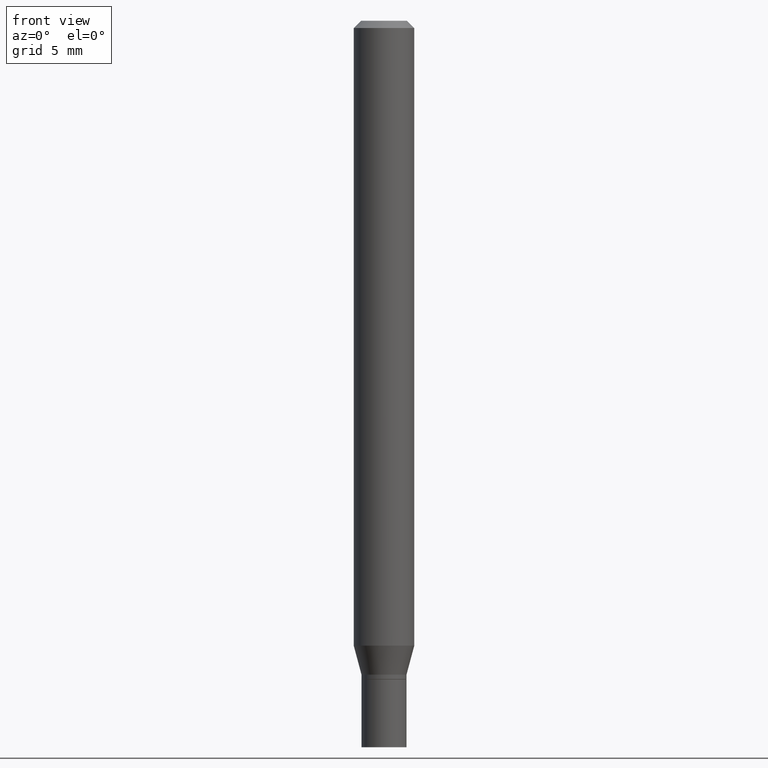
[diagram: clean part render]
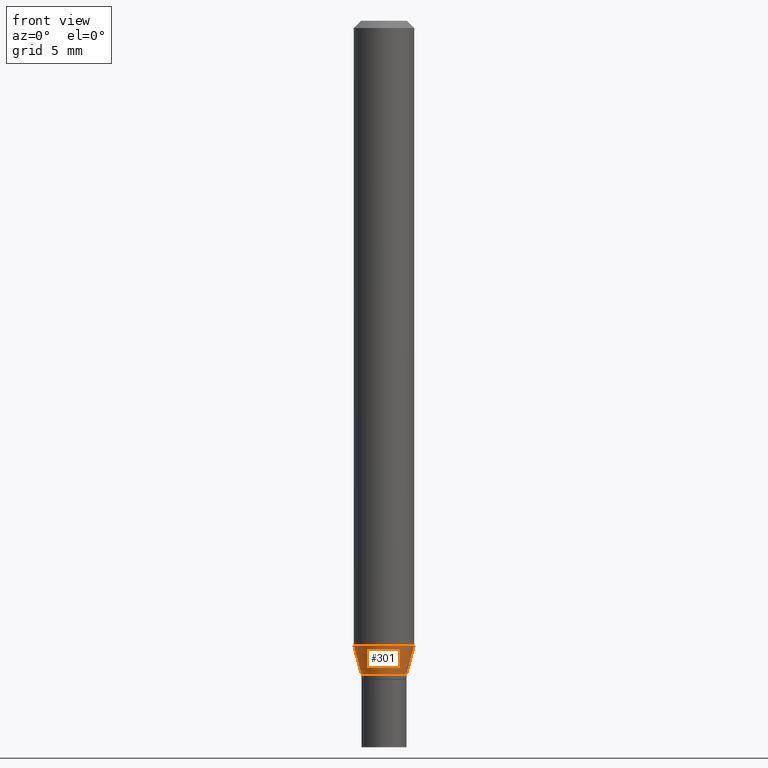
[diagram: same view with one face highlighted and labeled with its STEP entity id]
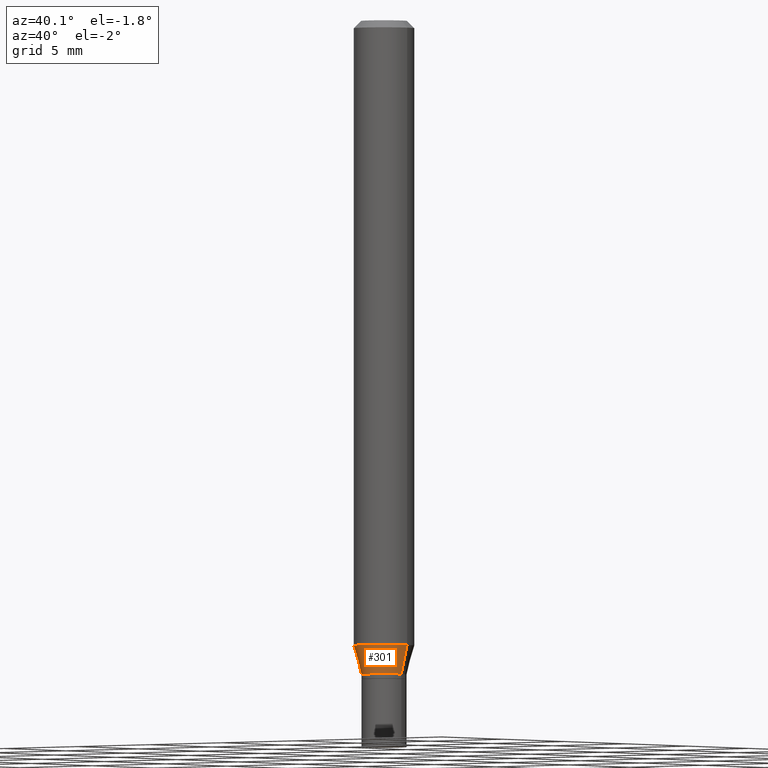
[diagram: same view with one face highlighted and labeled with its STEP entity id]
A machine part, front view. The second image highlights one B-rep face of the part: STEP entity #301.
A second angle (auxiliary view) of the same face is appended — the face is thin or edge-on in the first view.
In plain terms, the highlighted conical surface has half-angle 15 deg.
Its self-contained STEP definition (entity closure, byte-faithful):
#17 = DIRECTION ( 'NONE',  ( -2.445468806185136597E-29, 3.491481338843145583E-15, 1.000000000000000000 ) ) ;
#19 = VERTEX_POINT ( 'NONE', #70 ) ;
#27 = CARTESIAN_POINT ( 'NONE',  ( -0.04649999999999992334, -4.222010930447061653E-15, -1.350000000000000089 ) ) ;
#58 = ORIENTED_EDGE ( 'NONE', *, *, #153, .T. ) ;
#70 = CARTESIAN_POINT ( 'NONE',  ( 0.04649999999999992334, -5.038207571950657304E-15, -1.350000000000000089 ) ) ;
#96 = DIRECTION ( 'NONE',  ( 1.000000000000000000, -6.982962677686271444E-15, 0.000000000000000000 ) ) ;
#101 = CIRCLE ( 'NONE', #367, 0.04649999999999992334 ) ;
#102 = CIRCLE ( 'NONE', #375, 0.06250000000000000000 ) ;
#129 = ORIENTED_EDGE ( 'NONE', *, *, #421, .F. ) ;
#130 = FACE_OUTER_BOUND ( 'NONE', #310, .T. ) ;
#139 = AXIS2_PLACEMENT_3D ( 'NONE', #155, #17, #416 ) ;
#153 = EDGE_CURVE ( 'NONE', #400, #19, #101, .T. ) ;
#155 = CARTESIAN_POINT ( 'NONE',  ( 3.301382888349935078E-29, -4.713499807438246596E-15, -1.350000000000000089 ) ) ;
#166 = ORIENTED_EDGE ( 'NONE', *, *, #223, .T. ) ;
#168 = CARTESIAN_POINT ( 'NONE',  ( 3.301382888349935078E-29, -4.713499807438246596E-15, -1.350000000000000089 ) ) ;
#184 = CONICAL_SURFACE ( 'NONE', #139, 0.04649999999999992334, 0.2617993877991490193 ) ;
#202 = DIRECTION ( 'NONE',  ( 0.2588190451025203509, 1.565188264969630053E-15, 0.9659258262890684232 ) ) ;
#213 = LINE ( 'NONE', #253, #246 ) ;
#222 = LINE ( 'NONE', #360, #284 ) ;
#223 = EDGE_CURVE ( 'NONE', #19, #419, #213, .T. ) ;
#246 = VECTOR ( 'NONE', #202, 39.37007874015748143 ) ;
#253 = CARTESIAN_POINT ( 'NONE',  ( 0.04649999999999992334, -5.038207571950657304E-15, -1.350000000000000089 ) ) ;
#256 = CARTESIAN_POINT ( 'NONE',  ( -0.06250000000000000000, -4.060924425584323195E-15, -1.290287187078897668 ) ) ;
#284 = VECTOR ( 'NONE', #327, 39.37007874015748143 ) ;
#301 = ADVANCED_FACE ( 'NONE', ( #130 ), #184, .T. ) ;
#310 = EDGE_LOOP ( 'NONE', ( #129, #58, #166, #390 ) ) ;
#327 = DIRECTION ( 'NONE',  ( -0.2588190451025203509, 5.211531920934543942E-15, 0.9659258262890684232 ) ) ;
#329 = DIRECTION ( 'NONE',  ( 1.000000000000000000, -6.982962677686262766E-15, 0.000000000000000000 ) ) ;
#334 = DIRECTION ( 'NONE',  ( -2.445468806185136597E-29, 3.491481338843145583E-15, 1.000000000000000000 ) ) ;
#360 = CARTESIAN_POINT ( 'NONE',  ( -0.04649999999999992334, -4.383097435309800899E-15, -1.350000000000000089 ) ) ;
#367 = AXIS2_PLACEMENT_3D ( 'NONE', #168, #420, #96 ) ;
#375 = AXIS2_PLACEMENT_3D ( 'NONE', #393, #334, #329 ) ;
#390 = ORIENTED_EDGE ( 'NONE', *, *, #401, .F. ) ;
#393 = CARTESIAN_POINT ( 'NONE',  ( 3.155357067021810045E-29, -4.505013635434385811E-15, -1.290287187078897668 ) ) ;
#400 = VERTEX_POINT ( 'NONE', #27 ) ;
#401 = EDGE_CURVE ( 'NONE', #422, #419, #102, .T. ) ;
#416 = DIRECTION ( 'NONE',  ( 1.000000000000000000, -6.982962677686271444E-15, 0.000000000000000000 ) ) ;
#419 = VERTEX_POINT ( 'NONE', #438 ) ;
#420 = DIRECTION ( 'NONE',  ( -2.445468806185136597E-29, 3.491481338843145583E-15, 1.000000000000000000 ) ) ;
#421 = EDGE_CURVE ( 'NONE', #400, #422, #222, .T. ) ;
#422 = VERTEX_POINT ( 'NONE', #256 ) ;
#438 = CARTESIAN_POINT ( 'NONE',  ( 0.06250000000000000000, -4.941448802789777481E-15, -1.290287187078897668 ) ) ;